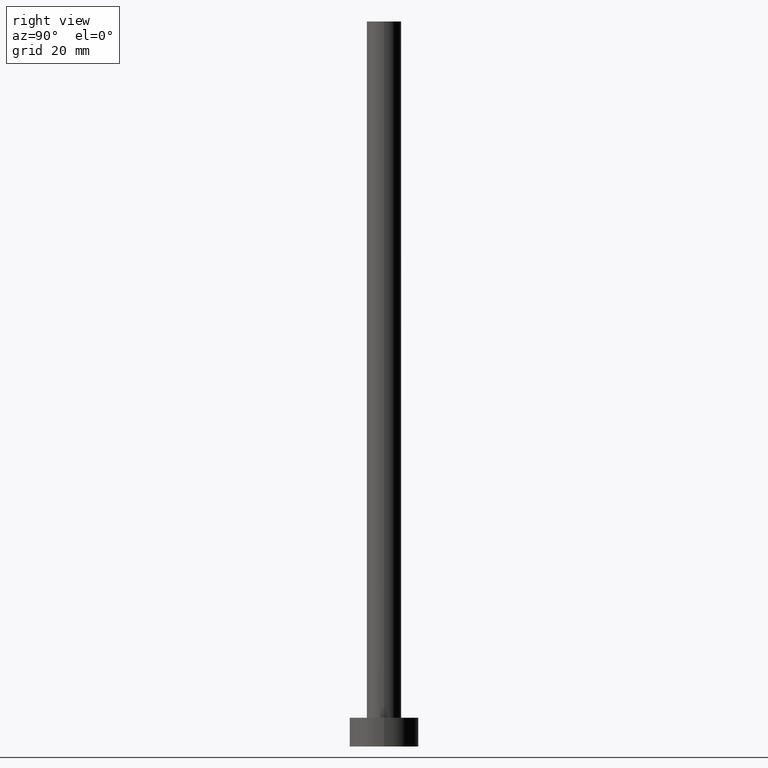
[diagram: clean part render]
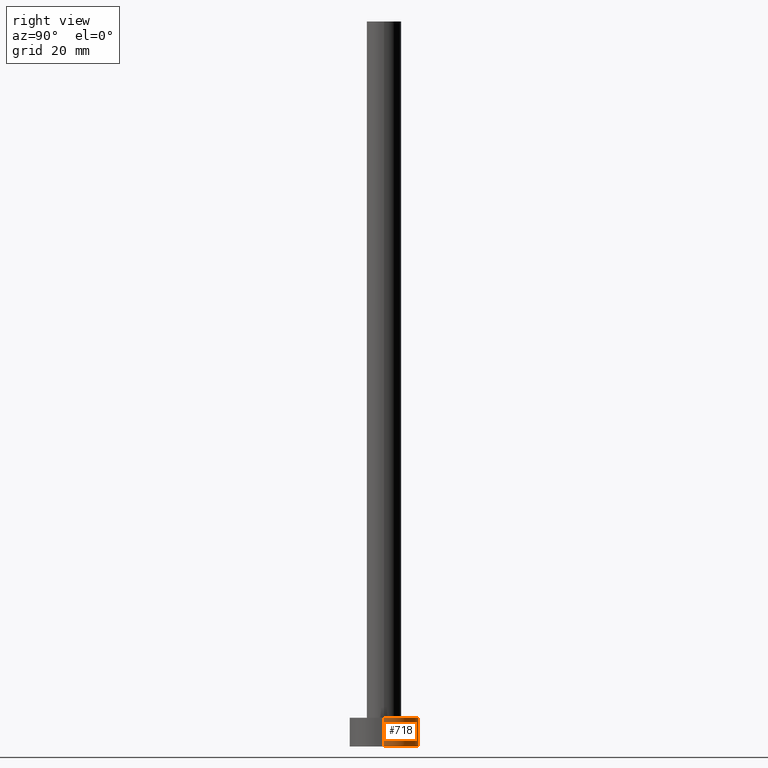
[diagram: same view with one face highlighted and labeled with its STEP entity id]
A machine part, right view. The second image highlights one B-rep face of the part: STEP entity #718.
In plain terms, the highlighted cylindrical surface (edge-blend (fillet) strip) has radius 6 mm, axis along (-0, -0, -1).
Its self-contained STEP definition (entity closure, byte-faithful):
#17 = DIRECTION ( 'NONE',  ( -0.000000000000000000, -0.000000000000000000, -1.000000000000000000 ) ) ;
#26 = CARTESIAN_POINT ( 'NONE',  ( -6.000000000000000888, 0.000000000000000000, 0.000000000000000000 ) ) ;
#51 = DIRECTION ( 'NONE',  ( 1.000000000000000000, 0.000000000000000000, 0.000000000000000000 ) ) ;
#67 = CIRCLE ( 'NONE', #349, 6.000000000000000888 ) ;
#128 = VERTEX_POINT ( 'NONE', #201 ) ;
#159 = DIRECTION ( 'NONE',  ( 0.000000000000000000, 0.000000000000000000, 1.000000000000000000 ) ) ;
#201 = CARTESIAN_POINT ( 'NONE',  ( 6.000000000000000888, 7.347880794884120722E-16, 0.000000000000000000 ) ) ;
#215 = AXIS2_PLACEMENT_3D ( 'NONE', #1050, #357, #917 ) ;
#263 = ORIENTED_EDGE ( 'NONE', *, *, #775, .T. ) ;
#290 = CARTESIAN_POINT ( 'NONE',  ( 0.000000000000000000, 0.000000000000000000, 0.000000000000000000 ) ) ;
#349 = AXIS2_PLACEMENT_3D ( 'NONE', #290, #1419, #51 ) ;
#357 = DIRECTION ( 'NONE',  ( -0.000000000000000000, -0.000000000000000000, -1.000000000000000000 ) ) ;
#386 = CIRCLE ( 'NONE', #1200, 6.000000000000000888 ) ;
#458 = FACE_OUTER_BOUND ( 'NONE', #1111, .T. ) ;
#469 = DIRECTION ( 'NONE',  ( -0.000000000000000000, -0.000000000000000000, -1.000000000000000000 ) ) ;
#579 = CARTESIAN_POINT ( 'NONE',  ( 6.000000000000000888, 7.347880794884120722E-16, 5.000000000000000000 ) ) ;
#616 = VERTEX_POINT ( 'NONE', #579 ) ;
#701 = CYLINDRICAL_SURFACE ( 'NONE', #215, 6.000000000000000888 ) ;
#718 = ADVANCED_FACE ( 'NONE', ( #458 ), #701, .T. ) ;
#728 = EDGE_CURVE ( 'NONE', #1283, #1348, #1116, .T. ) ;
#775 = EDGE_CURVE ( 'NONE', #616, #128, #924, .T. ) ;
#819 = VECTOR ( 'NONE', #17, 1000.000000000000000 ) ;
#905 = EDGE_CURVE ( 'NONE', #616, #1283, #386, .T. ) ;
#917 = DIRECTION ( 'NONE',  ( -1.000000000000000000, 0.000000000000000000, 0.000000000000000000 ) ) ;
#924 = LINE ( 'NONE', #1273, #819 ) ;
#939 = CARTESIAN_POINT ( 'NONE',  ( -6.000000000000000888, 0.000000000000000000, 5.000000000000000000 ) ) ;
#1012 = EDGE_CURVE ( 'NONE', #128, #1348, #67, .T. ) ;
#1034 = CARTESIAN_POINT ( 'NONE',  ( -6.000000000000000888, 0.000000000000000000, 5.000000000000000000 ) ) ;
#1046 = VECTOR ( 'NONE', #469, 1000.000000000000000 ) ;
#1050 = CARTESIAN_POINT ( 'NONE',  ( 0.000000000000000000, 0.000000000000000000, 5.000000000000000000 ) ) ;
#1090 = CARTESIAN_POINT ( 'NONE',  ( 0.000000000000000000, 0.000000000000000000, 5.000000000000000000 ) ) ;
#1111 = EDGE_LOOP ( 'NONE', ( #1460, #263, #1364, #1301 ) ) ;
#1116 = LINE ( 'NONE', #1034, #1046 ) ;
#1200 = AXIS2_PLACEMENT_3D ( 'NONE', #1090, #159, #1326 ) ;
#1273 = CARTESIAN_POINT ( 'NONE',  ( 6.000000000000000888, 7.347880794884120722E-16, 5.000000000000000000 ) ) ;
#1283 = VERTEX_POINT ( 'NONE', #939 ) ;
#1301 = ORIENTED_EDGE ( 'NONE', *, *, #728, .F. ) ;
#1326 = DIRECTION ( 'NONE',  ( 1.000000000000000000, 0.000000000000000000, 0.000000000000000000 ) ) ;
#1348 = VERTEX_POINT ( 'NONE', #26 ) ;
#1364 = ORIENTED_EDGE ( 'NONE', *, *, #1012, .T. ) ;
#1419 = DIRECTION ( 'NONE',  ( 0.000000000000000000, 0.000000000000000000, 1.000000000000000000 ) ) ;
#1460 = ORIENTED_EDGE ( 'NONE', *, *, #905, .F. ) ;